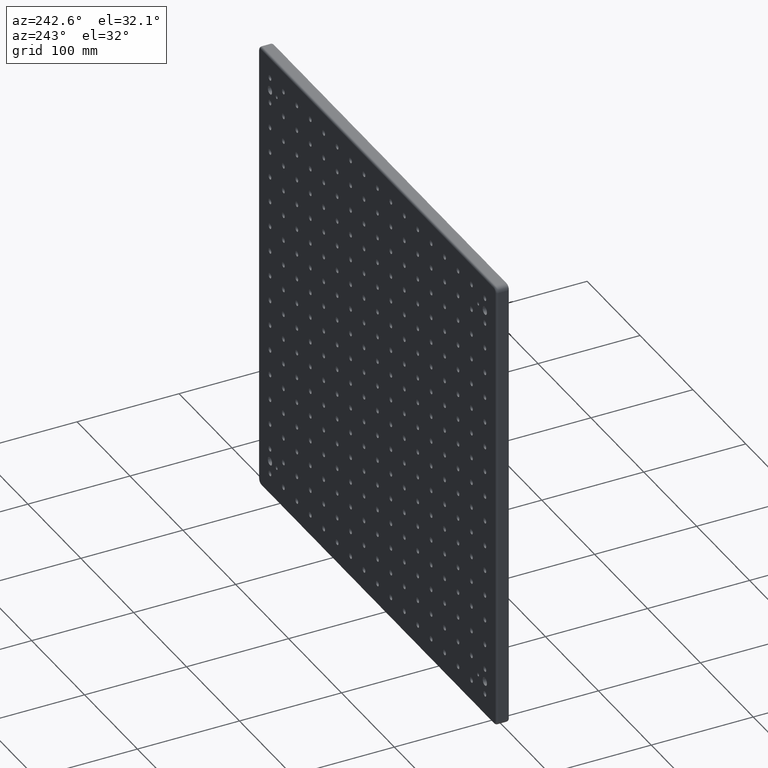
[diagram: clean part render]
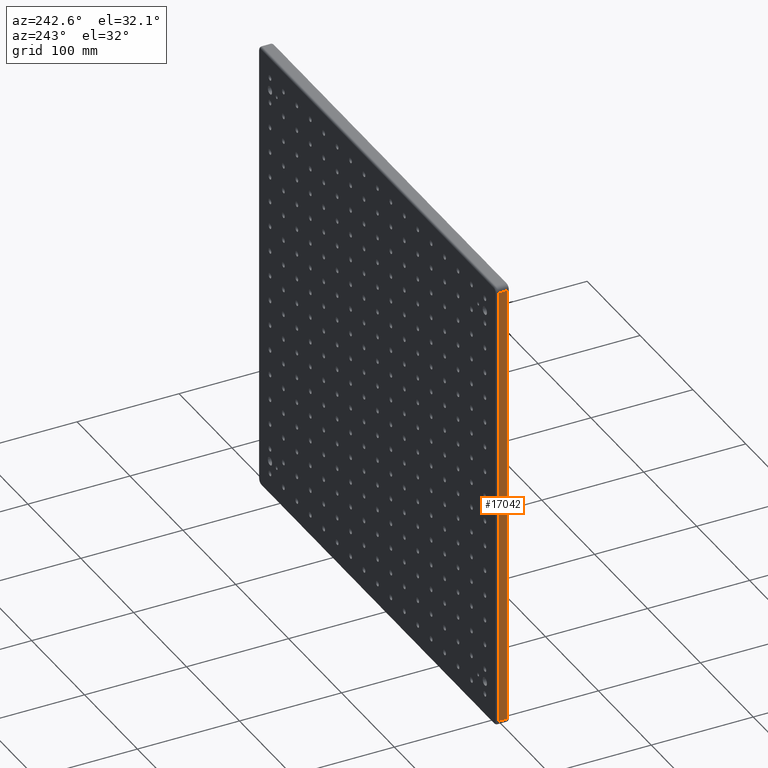
[diagram: same view with one face highlighted and labeled with its STEP entity id]
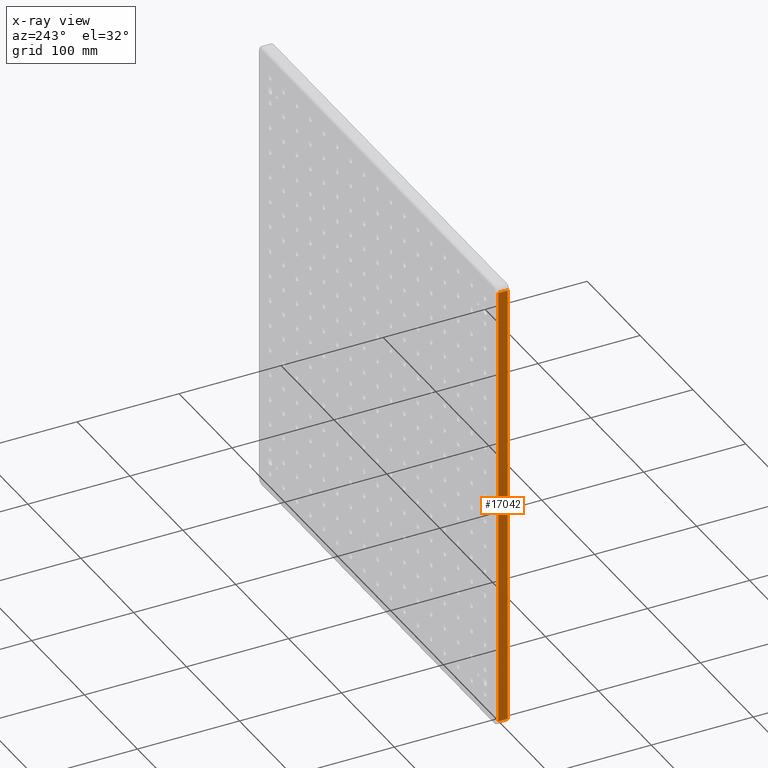
[diagram: x-ray of the same camera — body ghosted, the highlighted face saturated]
A machine part, auxiliary view. The second image highlights one B-rep face of the part: STEP entity #17042.
The next image is the same camera in x-ray: the body ghosted, the highlighted face saturated — about 0% of this face is hidden behind the body in this view.
In plain terms, the highlighted planar face has unit normal (1, 0, 0).
Its self-contained STEP definition (entity closure, byte-faithful):
#190 = LINE ( 'NONE', #5684, #9096 ) ;
#557 = DIRECTION ( 'NONE',  ( 0.0000000000000000000, 0.0000000000000000000, -1.000000000000000000 ) ) ;
#847 = LINE ( 'NONE', #13621, #22275 ) ;
#2297 = ORIENTED_EDGE ( 'NONE', *, *, #6517, .T. ) ;
#2480 = CARTESIAN_POINT ( 'NONE',  ( -224.9999999999999700, 13.00000000000000000, 220.0000000000000000 ) ) ;
#2799 = VECTOR ( 'NONE', #9163, 1000.000000000000000 ) ;
#3051 = FACE_OUTER_BOUND ( 'NONE', #13872, .T. ) ;
#3095 = ORIENTED_EDGE ( 'NONE', *, *, #11579, .T. ) ;
#3640 = LINE ( 'NONE', #5538, #2799 ) ;
#5538 = CARTESIAN_POINT ( 'NONE',  ( -224.9999999999999100, 11.00000000000000000, -220.0000000000000000 ) ) ;
#5684 = CARTESIAN_POINT ( 'NONE',  ( -224.9999999999999100, 13.00000000000000000, -220.0000000000000000 ) ) ;
#5943 = VERTEX_POINT ( 'NONE', #13206 ) ;
#6517 = EDGE_CURVE ( 'NONE', #5943, #22824, #190, .T. ) ;
#6568 = EDGE_CURVE ( 'NONE', #19794, #15871, #19942, .T. ) ;
#9096 = VECTOR ( 'NONE', #19940, 1000.000000000000000 ) ;
#9163 = DIRECTION ( 'NONE',  ( 0.0000000000000000000, -0.0000000000000000000, -1.000000000000000000 ) ) ;
#9493 = CARTESIAN_POINT ( 'NONE',  ( -224.9999999999999100, 13.00000000000000000, -220.0000000000000000 ) ) ;
#9589 = PLANE ( 'NONE',  #17896 ) ;
#11579 = EDGE_CURVE ( 'NONE', #19794, #5943, #3640, .T. ) ;
#11682 = DIRECTION ( 'NONE',  ( 0.0000000000000000000, 0.0000000000000000000, 1.000000000000000000 ) ) ;
#12602 = CARTESIAN_POINT ( 'NONE',  ( -224.9999999999999700, 11.00000000000000000, 220.0000000000000000 ) ) ;
#13206 = CARTESIAN_POINT ( 'NONE',  ( -224.9999999999999100, 11.00000000000000000, -220.0000000000000000 ) ) ;
#13621 = CARTESIAN_POINT ( 'NONE',  ( -224.9999999999999100, 2.000000000000000000, -220.0000000000000000 ) ) ;
#13872 = EDGE_LOOP ( 'NONE', ( #2297, #22685, #21550, #3095 ) ) ;
#15871 = VERTEX_POINT ( 'NONE', #20418 ) ;
#17042 = ADVANCED_FACE ( 'NONE', ( #3051 ), #9589, .F. ) ;
#17697 = VECTOR ( 'NONE', #20004, 1000.000000000000000 ) ;
#17896 = AXIS2_PLACEMENT_3D ( 'NONE', #9493, #20064, #557 ) ;
#19794 = VERTEX_POINT ( 'NONE', #12602 ) ;
#19940 = DIRECTION ( 'NONE',  ( -0.0000000000000000000, -1.000000000000000000, -0.0000000000000000000 ) ) ;
#19942 = LINE ( 'NONE', #2480, #17697 ) ;
#20004 = DIRECTION ( 'NONE',  ( -0.0000000000000000000, -1.000000000000000000, -0.0000000000000000000 ) ) ;
#20064 = DIRECTION ( 'NONE',  ( 1.000000000000000000, 0.0000000000000000000, 0.0000000000000000000 ) ) ;
#20418 = CARTESIAN_POINT ( 'NONE',  ( -224.9999999999999700, 2.000000000000003600, 220.0000000000000000 ) ) ;
#21550 = ORIENTED_EDGE ( 'NONE', *, *, #6568, .F. ) ;
#22275 = VECTOR ( 'NONE', #11682, 1000.000000000000000 ) ;
#22608 = EDGE_CURVE ( 'NONE', #22824, #15871, #847, .T. ) ;
#22685 = ORIENTED_EDGE ( 'NONE', *, *, #22608, .T. ) ;
#22824 = VERTEX_POINT ( 'NONE', #23036 ) ;
#23036 = CARTESIAN_POINT ( 'NONE',  ( -224.9999999999999100, 2.000000000000001800, -220.0000000000000000 ) ) ;